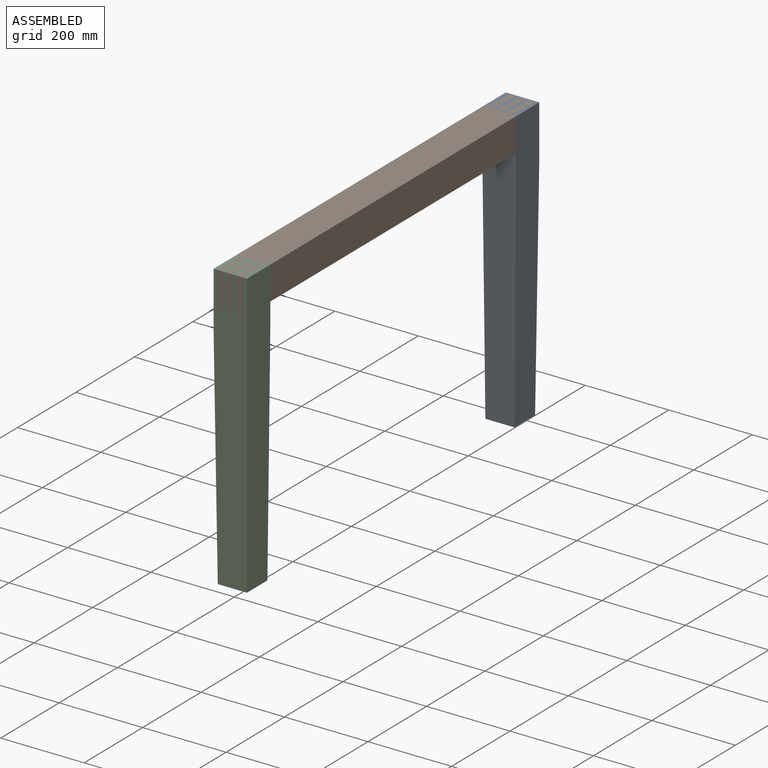
[diagram: assembled view]
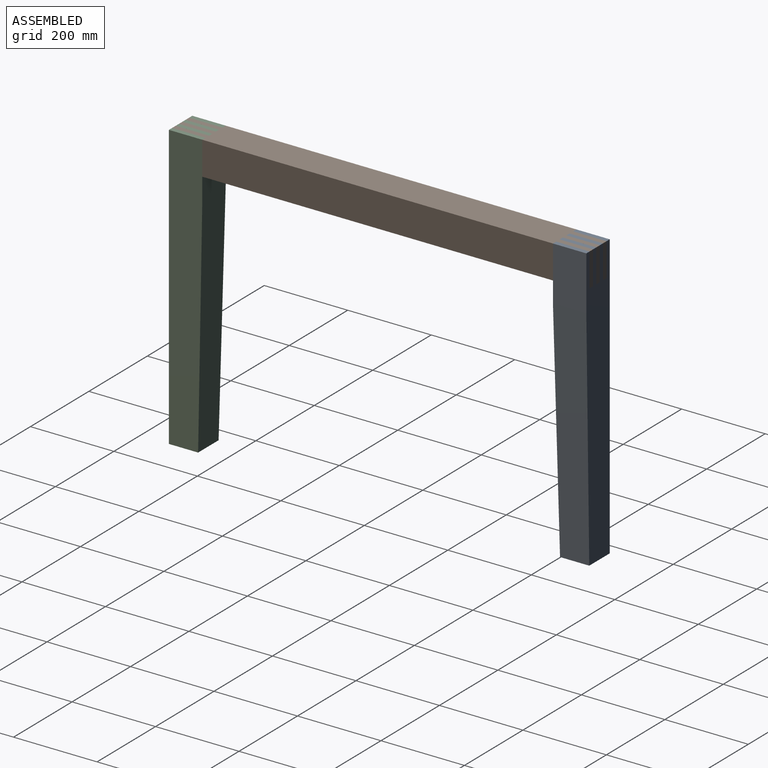
[diagram: assembled view, second angle]
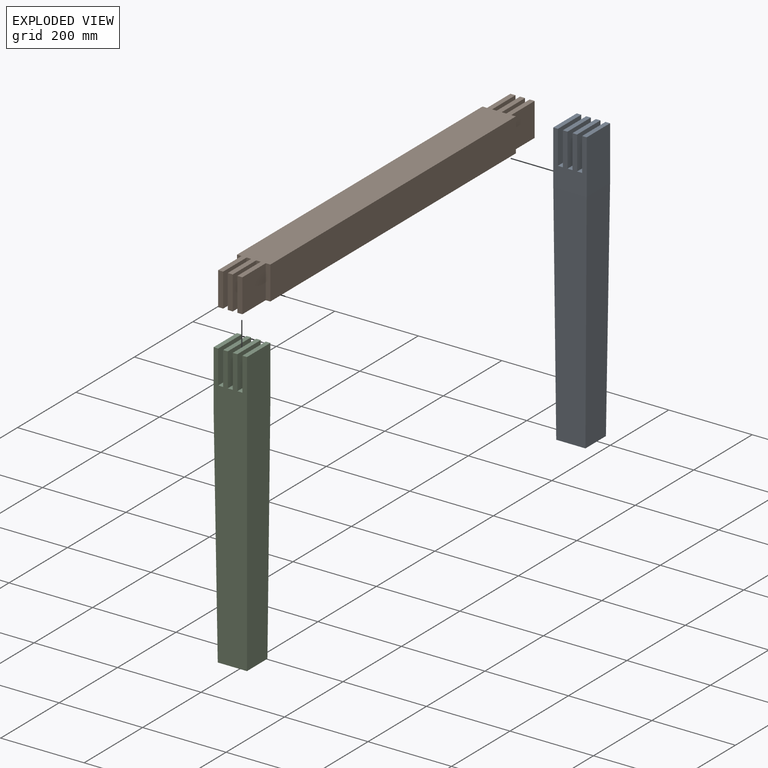
[diagram: exploded view]
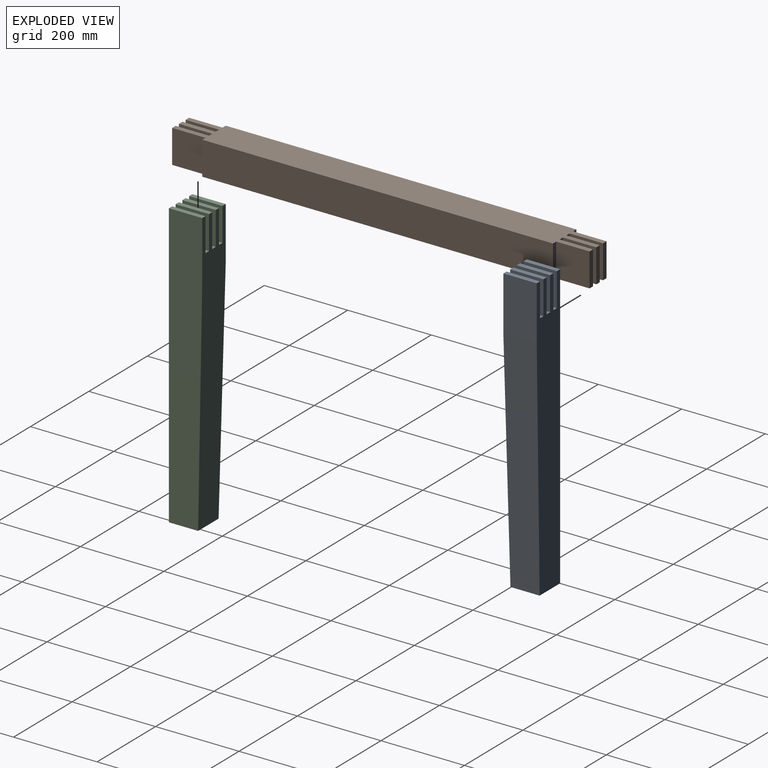
[diagram: exploded view, second angle]
ASSEMBLY  parts=3 mates=2
PART A: 20 faces, bbox 80x80x680 mm
  f0: plane 80x11mm, normal (0,0,1), area 880mm2, adj f3,f4,f12,f16
  f1: plane 80x11mm, normal (0,0,1), area 880mm2, adj f3,f4,f9,f13
  f2: plane 80x11mm, normal (0,0,1), area 880mm2, adj f3,f4,f5,f10
  f3: plane 130x80mm, normal (0,1,0), area 7520mm2, adj f0,f1,f2,f5,f6,f8,f9,f10
  f4: plane 680x80mm, normal (0,-1,0), area 48770mm2, adj f0,f1,f2,f5,f6,f7,f8,f9
  f5: plane 680x80mm, normal (1,0,0), area 51650mm2, adj f2,f3,f4,f7,f18
  f6: plane 130x80mm, normal (-1,0,0), area 10400mm2, adj f3,f4,f8,f19
  f7: plane 70x70mm, normal (0,0,-1), area 4900mm2, adj f4,f5,f18,f19
  f8: plane 80x11mm, normal (0,0,1), area 880mm2, adj f3,f4,f6,f15
  f9: plane 80x80mm, normal (1,0,0), area 6400mm2, adj f1,f3,f4,f11
  f10: plane 80x80mm, normal (-1,0,0), area 6400mm2, adj f2,f3,f4,f11
  f11: plane 80x12mm, normal (0,0,1), area 960mm2, adj f3,f4,f9,f10
  f12: plane 80x80mm, normal (1,0,0), area 6400mm2, adj f0,f3,f4,f14
  f13: plane 80x80mm, normal (-1,0,0), area 6400mm2, adj f1,f3,f4,f14
  f14: plane 80x12mm, normal (0,0,1), area 960mm2, adj f3,f4,f12,f13
  f15: plane 80x80mm, normal (1,0,0), area 6400mm2, adj f3,f4,f8,f17
  f16: plane 80x80mm, normal (-1,0,0), area 6400mm2, adj f0,f3,f4,f17
  f17: plane 80x12mm, normal (0,0,1), area 960mm2, adj f3,f4,f15,f16
  f18: plane 550x80mm, normal (0,1,-0.02), area 41256.8mm2, adj f3,f5,f7,f19
  f19: plane 550x80mm, normal (-1,0,-0.02), area 41256.8mm2, adj f4,f6,f7,f18
PART B: 30 faces, bbox 80x1000x80 mm
  f0: plane 80x11mm, normal (0,1,0), area 880mm2, adj f9,f10,f11,f27
  f1: plane 80x11mm, normal (0,1,0), area 880mm2, adj f10,f11,f22,f24
  f2: plane 80x11mm, normal (0,1,0), area 880mm2, adj f10,f11,f21,f28
  f3: plane 80x11mm, normal (0,-1,0), area 880mm2, adj f10,f11,f12,f19
  f4: plane 80x11mm, normal (0,-1,0), area 880mm2, adj f9,f10,f11,f16
  f5: plane 80x11mm, normal (0,-1,0), area 880mm2, adj f10,f11,f13,f15
  f6: plane 80x11mm, normal (0,1,0), area 880mm2, adj f7,f10,f11,f25
  f7: plane 840x80mm, normal (-1,0,0), area 67200mm2, adj f6,f8,f10,f11
  f8: plane 80x11mm, normal (0,-1,0), area 880mm2, adj f7,f10,f11,f18
  f9: plane 840x80mm, normal (1,0,0), area 67200mm2, adj f0,f4,f10,f11
  f10: plane 1000x80mm, normal (0,0,-1), area 72960mm2, adj f0,f1,f2,f3,f4,f5,f6,f7
  f11: plane 1000x80mm, normal (0,0,1), area 72960mm2, adj f0,f1,f2,f3,f4,f5,f6,f7
  f12: plane 80x80mm, normal (-1,0,0), area 6400mm2, adj f3,f10,f11,f14
  f13: plane 80x80mm, normal (1,0,0), area 6400mm2, adj f5,f10,f11,f14
  f14: plane 80x12mm, normal (0,-1,0), area 960mm2, adj f10,f11,f12,f13
  f15: plane 80x80mm, normal (-1,0,0), area 6400mm2, adj f5,f10,f11,f17
  f16: plane 80x80mm, normal (1,0,0), area 6400mm2, adj f4,f10,f11,f17
  f17: plane 80x12mm, normal (0,-1,0), area 960mm2, adj f10,f11,f15,f16
  f18: plane 80x80mm, normal (-1,0,0), area 6400mm2, adj f8,f10,f11,f20
  f19: plane 80x80mm, normal (1,0,0), area 6400mm2, adj f3,f10,f11,f20
  f20: plane 80x12mm, normal (0,-1,0), area 960mm2, adj f10,f11,f18,f19
  f21: plane 80x80mm, normal (1,0,0), area 6400mm2, adj f2,f10,f11,f23
  f22: plane 80x80mm, normal (-1,0,0), area 6400mm2, adj f1,f10,f11,f23
  f23: plane 80x12mm, normal (0,1,0), area 960mm2, adj f10,f11,f21,f22
  f24: plane 80x80mm, normal (1,0,0), area 6400mm2, adj f1,f10,f11,f26
  f25: plane 80x80mm, normal (-1,0,0), area 6400mm2, adj f6,f10,f11,f26
  f26: plane 80x12mm, normal (0,1,0), area 960mm2, adj f10,f11,f24,f25
  f27: plane 80x80mm, normal (1,0,0), area 6400mm2, adj f0,f10,f11,f29
  f28: plane 80x80mm, normal (-1,0,0), area 6400mm2, adj f2,f10,f11,f29
  f29: plane 80x12mm, normal (0,1,0), area 960mm2, adj f10,f11,f27,f28
PART C: same geometry as A
PLACE A rot(axis=(0,0,-1),180deg) t=(0,460,0)mm
PLACE B at identity fixed
PLACE C t=(0,-460,0)mm
MATE fastened B.f27 <-> A.f15  axis (1,0,0) through (29,500,0)mm
MATE fastened B.f16 <-> C.f10  axis (1,0,0) through (29,-460,-40)mm
